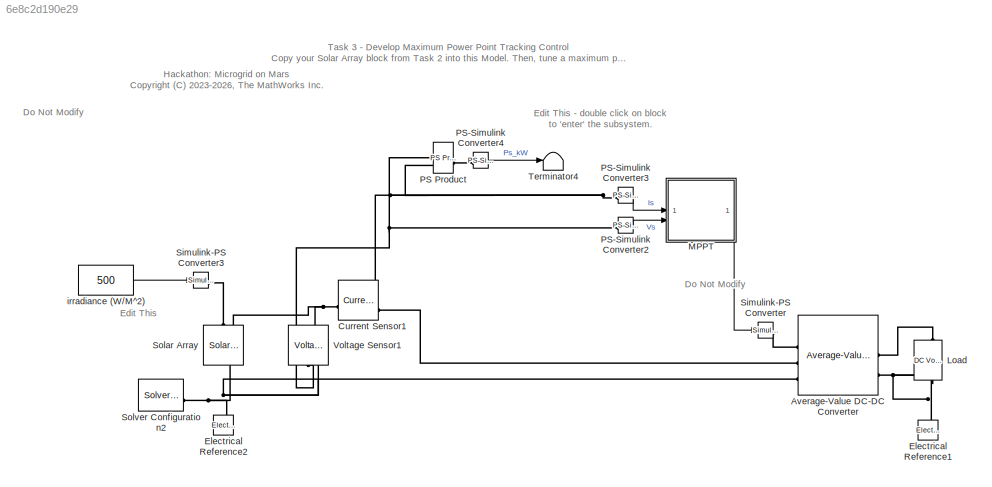
MODEL slx_6e8c2d190e29
KIND model
CONFIG SolverName = VariableStepAuto
CONFIG StopTime = 100
BLOCK [Constant]  irradiance (W//M^2)
  Value = 500
BLOCK [Reference] Average-Value DC-DC Converter  REF=ee_lib/Semiconductors &
Converters/Converters/Average-Value DC-DC
Converter
  SourceBlock = ee_lib/Semiconductors &\nConverters/Converters/Average-Value DC-DC\nConverter
  SourceType = Average-Value DC-DC\nConverter
BLOCK [Reference] Current Sensor1  REF=fl_lib/Electrical/Electrical Sensors/Current Sensor
  SourceBlock = fl_lib/Electrical/Electrical Sensors/Current Sensor
  SourceType = Current Sensor
BLOCK [Reference] Electrical Reference1  REF=fl_lib/Electrical/Electrical Elements/Electrical Reference
  NameLocation = right
  SourceBlock = fl_lib/Electrical/Electrical Elements/Electrical Reference
  SourceType = Electrical Reference
BLOCK [Reference] Electrical Reference2  REF=fl_lib/Electrical/Electrical Elements/Electrical Reference
  NameLocation = right
  SourceBlock = fl_lib/Electrical/Electrical Elements/Electrical Reference
  SourceType = Electrical Reference
BLOCK [Reference] Load  REF=fl_lib/Electrical/Electrical Sources/DC Voltage Source
  NameLocation = right
  SourceBlock = fl_lib/Electrical/Electrical Sources/DC Voltage Source
  SourceType = DC Voltage Source
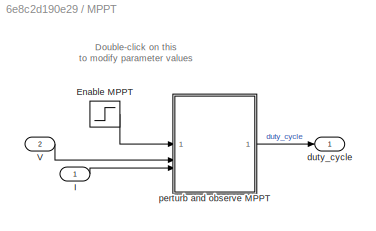
BLOCK [SubSystem] MPPT
  NameLocation = top
  PortSchema = {"entries":[{"content":{"sides":[{"content":{"connectorIds":["In1","In2"]},"type":"ConnectorPlacement.EquallySpacedRectSide","uuid":"38bd0aeb-e74d-4899-bfbb-86ccd5f95d4f"},{"content":{"side":"RIGHT"},"type":"ConnectorPlacement.EquallySpacedRectSide","uuid":"60d4d859-7951-4137-a4d3-aa9c7dbc0cca"},{"content":{"side":"TOP"},"type":"ConnectorPlacement.EquallySpacedRectSide","uuid":"2b4b2d3e-d6d6-4128-...<+354ch>
BLOCK [Step] MPPT/Enable MPPT
  NameLocation = top
  SampleTime = 0
  Time = 0.1
BLOCK [Inport] MPPT/I
BLOCK [Inport] MPPT/V
  Port = 2
BLOCK [Outport] MPPT/duty_cycle
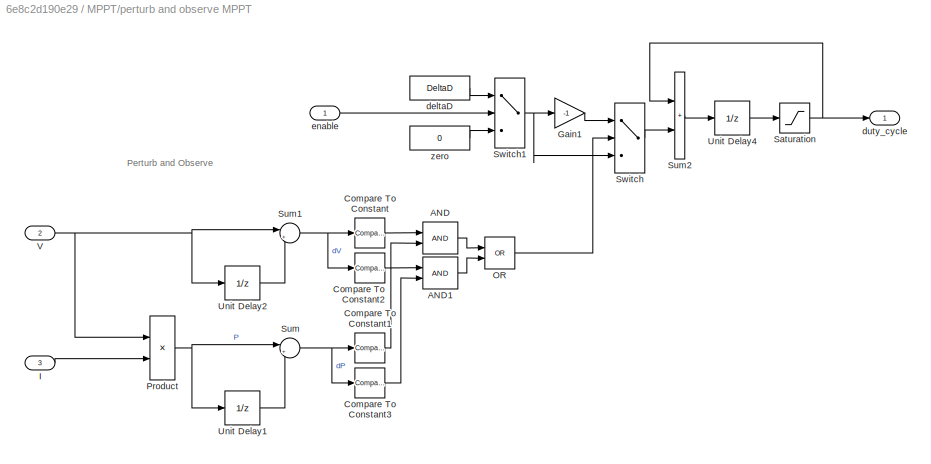
BLOCK [SubSystem] MPPT/perturb and observe MPPT
BLOCK [Logic] MPPT/perturb and observe MPPT/AND
  AllPortsSameDT = off
  IconShape = distinctive
  OutDataTypeStr = boolean
BLOCK [Logic] MPPT/perturb and observe MPPT/AND1
  AllPortsSameDT = off
  IconShape = distinctive
  OutDataTypeStr = boolean
BLOCK [Reference] MPPT/perturb and observe MPPT/Compare To Constant  REF=simulink/Logic and Bit
Operations/Compare
To Constant
  SourceBlock = simulink/Logic and Bit\nOperations/Compare\nTo Constant
  SourceType = Compare To Constant
BLOCK [Reference] MPPT/perturb and observe MPPT/Compare To Constant1  REF=simulink/Logic and Bit
Operations/Compare
To Constant
  SourceBlock = simulink/Logic and Bit\nOperations/Compare\nTo Constant
  SourceType = Compare To Constant
BLOCK [Reference] MPPT/perturb and observe MPPT/Compare To Constant2  REF=simulink/Logic and Bit
Operations/Compare
To Constant
  SourceBlock = simulink/Logic and Bit\nOperations/Compare\nTo Constant
  SourceType = Compare To Constant
BLOCK [Reference] MPPT/perturb and observe MPPT/Compare To Constant3  REF=simulink/Logic and Bit
Operations/Compare
To Constant
  SourceBlock = simulink/Logic and Bit\nOperations/Compare\nTo Constant
  SourceType = Compare To Constant
BLOCK [Gain] MPPT/perturb and observe MPPT/Gain1
  Gain = -1
BLOCK [Inport] MPPT/perturb and observe MPPT/I
  Port = 3
BLOCK [Logic] MPPT/perturb and observe MPPT/OR
  AllPortsSameDT = off
  IconShape = distinctive
  Operator = OR
  OutDataTypeStr = boolean
BLOCK [Product] MPPT/perturb and observe MPPT/Product
BLOCK [Saturate] MPPT/perturb and observe MPPT/Saturation
  LowerLimit = Dmin
  UpperLimit = Dmax
BLOCK [Sum] MPPT/perturb and observe MPPT/Sum
  Inputs = |+-
BLOCK [Sum] MPPT/perturb and observe MPPT/Sum1
  Inputs = |+-
BLOCK [Sum] MPPT/perturb and observe MPPT/Sum2
  IconShape = rectangular
BLOCK [Switch] MPPT/perturb and observe MPPT/Switch
  Criteria = u2 > Threshold
  InputSameDT = off
  SaturateOnIntegerOverflow = off
BLOCK [Switch] MPPT/perturb and observe MPPT/Switch1
  Criteria = u2 > Threshold
  InputSameDT = off
  SaturateOnIntegerOverflow = off
BLOCK [UnitDelay] MPPT/perturb and observe MPPT/Unit Delay1
  SampleTime = -1
BLOCK [UnitDelay] MPPT/perturb and observe MPPT/Unit Delay2
  SampleTime = -1
BLOCK [UnitDelay] MPPT/perturb and observe MPPT/Unit Delay4
  InitialCondition = Dinit
  SampleTime = Ts
BLOCK [Inport] MPPT/perturb and observe MPPT/V
  Port = 2
BLOCK [Constant] MPPT/perturb and observe MPPT/deltaD
  NameLocation = top
  Value = DeltaD
BLOCK [Outport] MPPT/perturb and observe MPPT/duty_cycle
BLOCK [Inport] MPPT/perturb and observe MPPT/enable
BLOCK [Constant] MPPT/perturb and observe MPPT/zero
  Value = 0
BLOCK [Reference] PS Product  REF=fl_lib/Physical Signals/Functions/PS Product
  SourceBlock = fl_lib/Physical Signals/Functions/PS Product
  SourceType = PS Product
BLOCK [Reference] PS-Simulink Converter2  REF=nesl_utility/PS-Simulink
Converter
  SourceBlock = nesl_utility/PS-Simulink\nConverter
  SourceType = PS-Simulink\nConverter
BLOCK [Reference] PS-Simulink Converter3  REF=nesl_utility/PS-Simulink
Converter
  SourceBlock = nesl_utility/PS-Simulink\nConverter
  SourceType = PS-Simulink\nConverter
BLOCK [Reference] PS-Simulink Converter4  REF=nesl_utility/PS-Simulink
Converter
  SourceBlock = nesl_utility/PS-Simulink\nConverter
  SourceType = PS-Simulink\nConverter
BLOCK [Reference] Simulink-PS Converter  REF=nesl_utility/Simulink-PS
Converter
  SourceBlock = nesl_utility/Simulink-PS\nConverter
  SourceType = Simulink-PS\nConverter
BLOCK [Reference] Simulink-PS Converter3  REF=nesl_utility/Simulink-PS
Converter
  SourceBlock = nesl_utility/Simulink-PS\nConverter
  SourceType = Simulink-PS\nConverter
BLOCK [Reference] Solar Array  REF=ee_lib/Sources/Solar Cell
  NameLocation = left
  SourceBlock = ee_lib/Sources/Solar Cell
  SourceType = Solar Cell
BLOCK [Reference] Solver Configuration2  REF=nesl_utility/Solver
Configuration
  SourceBlock = nesl_utility/Solver\nConfiguration
  SourceType = Solver\nConfiguration
BLOCK [Terminator] Terminator4
BLOCK [Reference] Voltage Sensor1  REF=fl_lib/Electrical/Electrical Sensors/Voltage Sensor
  NameLocation = right
  SourceBlock = fl_lib/Electrical/Electrical Sensors/Voltage Sensor
  SourceType = Voltage Sensor
ANNOTATION (root): Hackathon: Microgrid on Mars <copyright redacted>
ANNOTATION (root): Task 3 - Develop Maximum Power Point Tracking Control Copy your Solar Array block from Task 2 into this Model. Then, tune a maximum power point tracking algorithm to control a DC-DC converter so that the maximum power of the solar array determined in Task 2 is delivered to the load.
ANNOTATION (root): Do Not Modify
ANNOTATION (root): Edit This
ANNOTATION (root): Edit This - double click on block to 'enter' the subsystem.
ANNOTATION MPPT: Double-click on this to modify parameter values
ANNOTATION MPPT/perturb and observe MPPT: Perturb and Observe
LINE  irradiance (W//M^2):1 -> Simulink-PS Converter3:1
LINE MPPT/Enable MPPT:1 -> MPPT/perturb and observe MPPT:1
LINE MPPT/I:1 -> MPPT/perturb and observe MPPT:3
LINE MPPT/V:1 -> MPPT/perturb and observe MPPT:2
LINE MPPT/perturb and observe MPPT/AND1:1 -> MPPT/perturb and observe MPPT/OR:2
LINE MPPT/perturb and observe MPPT/AND:1 -> MPPT/perturb and observe MPPT/OR:1
LINE MPPT/perturb and observe MPPT/Compare To Constant1:1 -> MPPT/perturb and observe MPPT/AND:2
LINE MPPT/perturb and observe MPPT/Compare To Constant2:1 -> MPPT/perturb and observe MPPT/AND1:1
LINE MPPT/perturb and observe MPPT/Compare To Constant3:1 -> MPPT/perturb and observe MPPT/AND1:2
LINE MPPT/perturb and observe MPPT/Compare To Constant:1 -> MPPT/perturb and observe MPPT/AND:1
LINE MPPT/perturb and observe MPPT/Gain1:1 -> MPPT/perturb and observe MPPT/Switch:1
LINE MPPT/perturb and observe MPPT/I:1 -> MPPT/perturb and observe MPPT/Product:2
LINE MPPT/perturb and observe MPPT/OR:1 -> MPPT/perturb and observe MPPT/Switch:2
NET MPPT/perturb and observe MPPT/Product:1 -> MPPT/perturb and observe MPPT/Sum:1, MPPT/perturb and observe MPPT/Unit Delay1:1
NET MPPT/perturb and observe MPPT/Saturation:1 -> MPPT/perturb and observe MPPT/Sum2:1, MPPT/perturb and observe MPPT/duty_cycle:1
NET MPPT/perturb and observe MPPT/Sum1:1 -> MPPT/perturb and observe MPPT/Compare To Constant2:1, MPPT/perturb and observe MPPT/Compare To Constant:1
LINE MPPT/perturb and observe MPPT/Sum2:1 -> MPPT/perturb and observe MPPT/Unit Delay4:1
NET MPPT/perturb and observe MPPT/Sum:1 -> MPPT/perturb and observe MPPT/Compare To Constant1:1, MPPT/perturb and observe MPPT/Compare To Constant3:1
NET MPPT/perturb and observe MPPT/Switch1:1 -> MPPT/perturb and observe MPPT/Gain1:1, MPPT/perturb and observe MPPT/Switch:3
LINE MPPT/perturb and observe MPPT/Switch:1 -> MPPT/perturb and observe MPPT/Sum2:2
LINE MPPT/perturb and observe MPPT/Unit Delay1:1 -> MPPT/perturb and observe MPPT/Sum:2
LINE MPPT/perturb and observe MPPT/Unit Delay2:1 -> MPPT/perturb and observe MPPT/Sum1:2
LINE MPPT/perturb and observe MPPT/Unit Delay4:1 -> MPPT/perturb and observe MPPT/Saturation:1
NET MPPT/perturb and observe MPPT/V:1 -> MPPT/perturb and observe MPPT/Product:1, MPPT/perturb and observe MPPT/Sum1:1, MPPT/perturb and observe MPPT/Unit Delay2:1
LINE MPPT/perturb and observe MPPT/deltaD:1 -> MPPT/perturb and observe MPPT/Switch1:1
LINE MPPT/perturb and observe MPPT/enable:1 -> MPPT/perturb and observe MPPT/Switch1:2
LINE MPPT/perturb and observe MPPT/zero:1 -> MPPT/perturb and observe MPPT/Switch1:3
LINE MPPT/perturb and observe MPPT:1 -> MPPT/duty_cycle:1
LINE MPPT:1 -> Simulink-PS Converter:1
LINE PS-Simulink Converter2:1 -> MPPT:2
LINE PS-Simulink Converter3:1 -> MPPT:1
LINE PS-Simulink Converter4:1 -> Terminator4:1
PLINE Average-Value DC-DC Converter:LConn1 -- Simulink-PS Converter:RConn1
PLINE Average-Value DC-DC Converter:LConn2 -- Current Sensor1:RConn2
PNET net1: Average-Value DC-DC Converter:LConn3 -- Electrical Reference2:LConn1 -- Solar Array:RConn1 -- Solver Configuration2:RConn1 -- Voltage Sensor1:RConn2
PLINE Average-Value DC-DC Converter:RConn1 -- Load:LConn1
PNET net2: Average-Value DC-DC Converter:RConn2 -- Electrical Reference1:LConn1 -- Load:RConn1
PNET net3: Current Sensor1:LConn1 -- Solar Array:LConn2 -- Voltage Sensor1:LConn1
PNET net4: Current Sensor1:RConn1 -- PS Product:LConn2 -- PS-Simulink Converter3:LConn1
PNET net5: PS Product:LConn1 -- PS-Simulink Converter2:LConn1 -- Voltage Sensor1:RConn1
PLINE PS Product:RConn1 -- PS-Simulink Converter4:LConn1
PLINE Simulink-PS Converter3:RConn1 -- Solar Array:LConn1
note: NET lines group one-source signal fan-out (src -> all destinations, sorted); 1:1 wires keep LINE; PNET lines group multi-terminal physical nets as a canonical sorted terminal list (undirected conserving connections); 2-terminal nets keep the pairwise PLINE form
